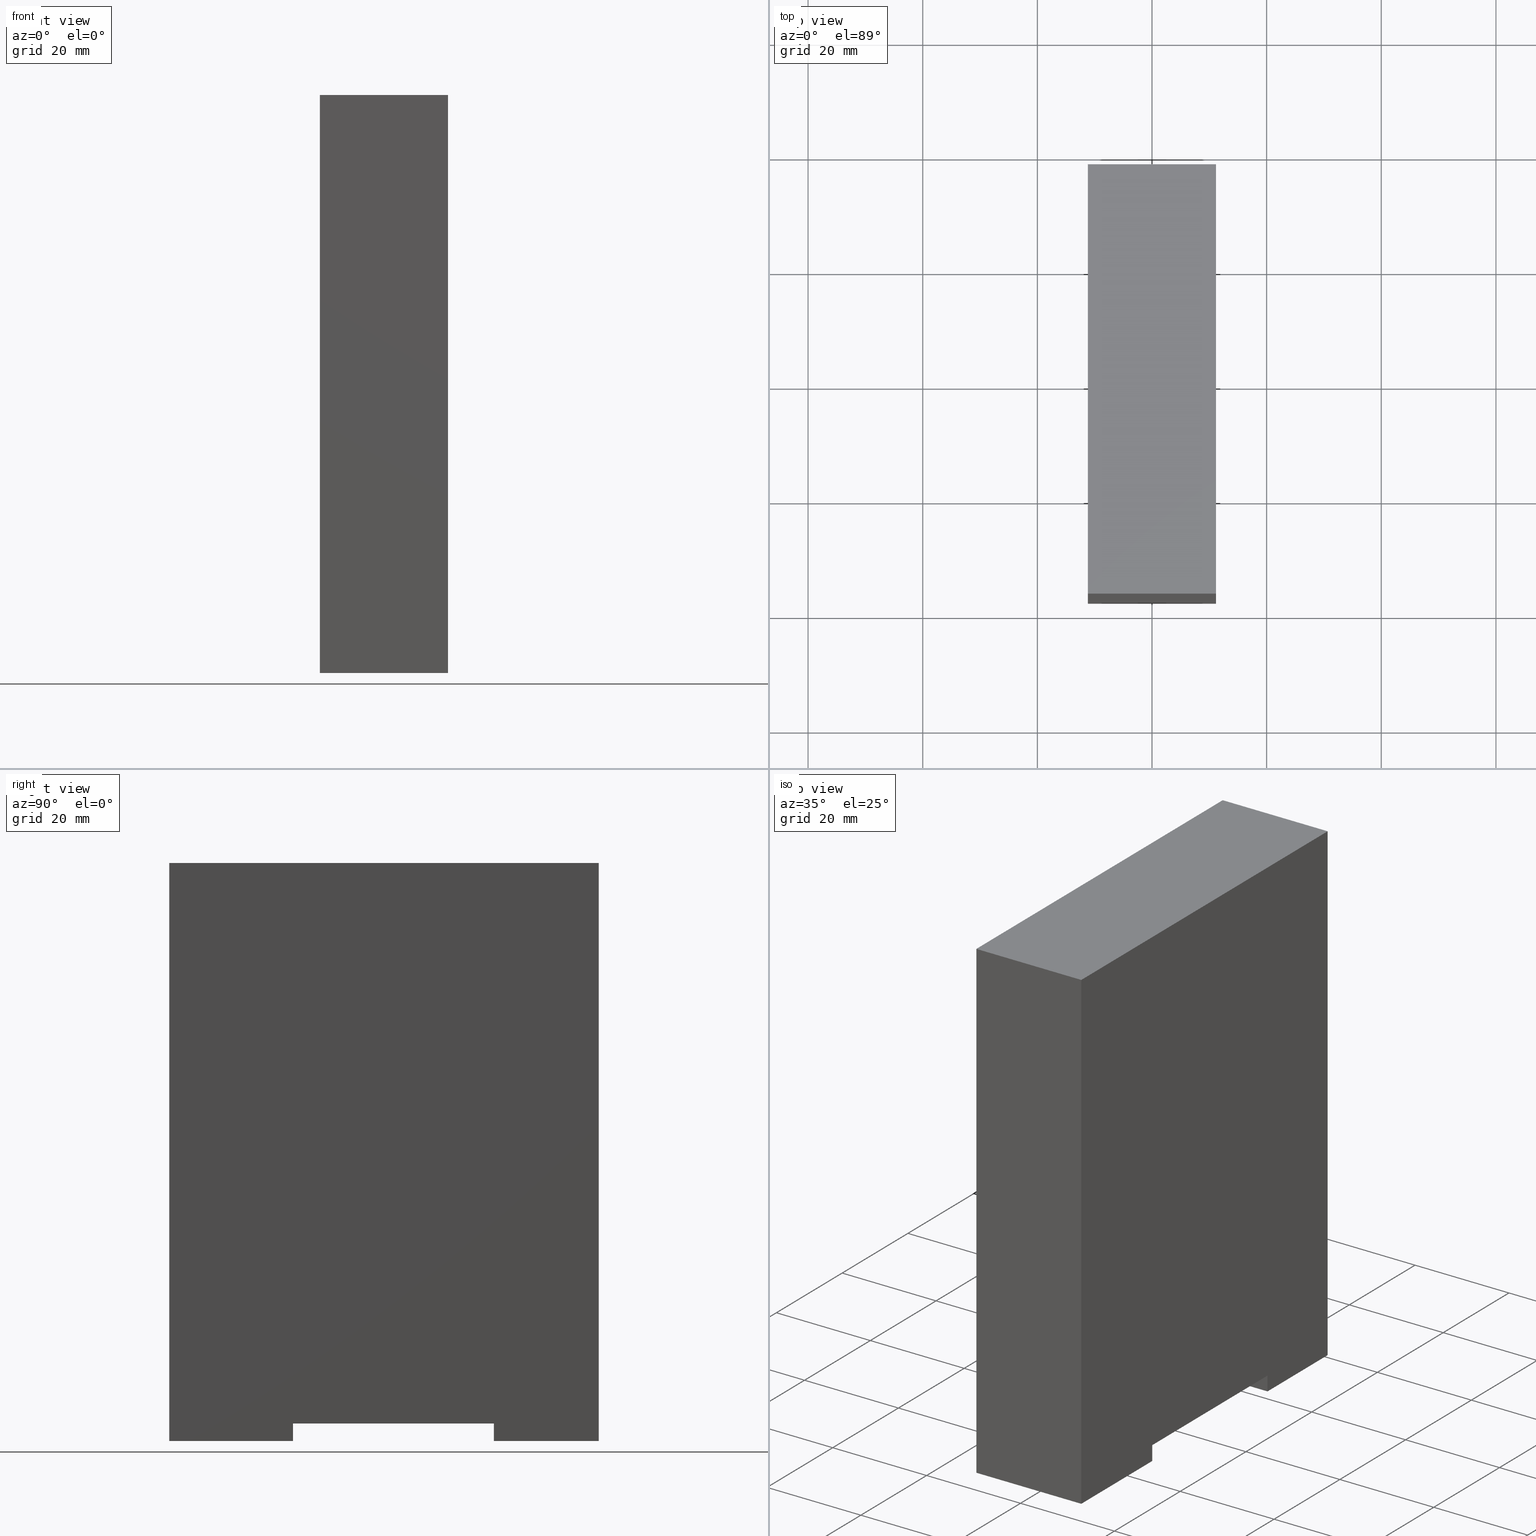
[diagram: canonical four-view strip — front | top / right | iso, engineering-drawing reading convention]
A machine part, canonical four-view strip (front | top / right | iso — engineering-drawing reading convention). The complete STEP part file that produces these views, byte-faithful:
ISO-10303-21;
HEADER;
FILE_DESCRIPTION((''),'2;1');
FILE_NAME('700-FSM4UZ12','2015-10-19T',('mguelmi'),('Rockwell Automation'),
'PRO/ENGINEER BY PARAMETRIC TECHNOLOGY CORPORATION, 2012480',
'PRO/ENGINEER BY PARAMETRIC TECHNOLOGY CORPORATION, 2012480','');
FILE_SCHEMA(('CONFIG_CONTROL_DESIGN'));
ENDSEC;
DATA;
#2=DIRECTION('',(0.E0,-1.E0,0.E0));
#3=VECTOR('',#2,2.95E0);
#4=CARTESIAN_POINT('',(-4.4E-1,1.475E0,0.E0));
#5=LINE('',#4,#3);
#6=DIRECTION('',(-1.E0,0.E0,0.E0));
#7=VECTOR('',#6,8.8E-1);
#8=CARTESIAN_POINT('',(4.4E-1,1.475E0,0.E0));
#9=LINE('',#8,#7);
#10=DIRECTION('',(0.E0,1.E0,0.E0));
#11=VECTOR('',#10,2.95E0);
#12=CARTESIAN_POINT('',(4.4E-1,-1.475E0,0.E0));
#13=LINE('',#12,#11);
#14=DIRECTION('',(1.E0,0.E0,0.E0));
#15=VECTOR('',#14,8.8E-1);
#16=CARTESIAN_POINT('',(-4.4E-1,-1.475E0,0.E0));
#17=LINE('',#16,#15);
#18=DIRECTION('',(0.E0,0.E0,1.E0));
#19=VECTOR('',#18,1.2E-1);
#20=CARTESIAN_POINT('',(-4.4E-1,7.55E-1,-3.97E0));
#21=LINE('',#20,#19);
#22=DIRECTION('',(0.E0,0.E0,-1.E0));
#23=VECTOR('',#22,3.97E0);
#24=CARTESIAN_POINT('',(-4.4E-1,1.475E0,0.E0));
#25=LINE('',#24,#23);
#26=DIRECTION('',(0.E0,0.E0,1.E0));
#27=VECTOR('',#26,1.2E-1);
#28=CARTESIAN_POINT('',(-4.4E-1,-6.25E-1,-3.97E0));
#29=LINE('',#28,#27);
#30=DIRECTION('',(0.E0,-1.E0,0.E0));
#31=VECTOR('',#30,1.38E0);
#32=CARTESIAN_POINT('',(-4.4E-1,7.55E-1,-3.85E0));
#33=LINE('',#32,#31);
#34=DIRECTION('',(-1.E0,0.E0,0.E0));
#35=VECTOR('',#34,8.8E-1);
#36=CARTESIAN_POINT('',(4.4E-1,7.55E-1,-3.85E0));
#37=LINE('',#36,#35);
#38=DIRECTION('',(-1.E0,0.E0,0.E0));
#39=VECTOR('',#38,8.8E-1);
#40=CARTESIAN_POINT('',(4.4E-1,-6.25E-1,-3.85E0));
#41=LINE('',#40,#39);
#42=DIRECTION('',(0.E0,-1.E0,0.E0));
#43=VECTOR('',#42,7.2E-1);
#44=CARTESIAN_POINT('',(-4.4E-1,1.475E0,-3.97E0));
#45=LINE('',#44,#43);
#46=DIRECTION('',(1.E0,0.E0,0.E0));
#47=VECTOR('',#46,8.8E-1);
#48=CARTESIAN_POINT('',(-4.4E-1,7.55E-1,-3.97E0));
#49=LINE('',#48,#47);
#50=DIRECTION('',(0.E0,1.E0,0.E0));
#51=VECTOR('',#50,7.2E-1);
#52=CARTESIAN_POINT('',(4.4E-1,7.55E-1,-3.97E0));
#53=LINE('',#52,#51);
#54=DIRECTION('',(-1.E0,0.E0,0.E0));
#55=VECTOR('',#54,8.8E-1);
#56=CARTESIAN_POINT('',(4.4E-1,1.475E0,-3.97E0));
#57=LINE('',#56,#55);
#58=DIRECTION('',(0.E0,-1.E0,0.E0));
#59=VECTOR('',#58,8.5E-1);
#60=CARTESIAN_POINT('',(-4.4E-1,-6.25E-1,-3.97E0));
#61=LINE('',#60,#59);
#62=DIRECTION('',(1.E0,0.E0,0.E0));
#63=VECTOR('',#62,8.8E-1);
#64=CARTESIAN_POINT('',(-4.4E-1,-1.475E0,-3.97E0));
#65=LINE('',#64,#63);
#66=DIRECTION('',(0.E0,1.E0,0.E0));
#67=VECTOR('',#66,8.5E-1);
#68=CARTESIAN_POINT('',(4.4E-1,-1.475E0,-3.97E0));
#69=LINE('',#68,#67);
#70=DIRECTION('',(1.E0,0.E0,0.E0));
#71=VECTOR('',#70,8.8E-1);
#72=CARTESIAN_POINT('',(-4.4E-1,-6.25E-1,-3.97E0));
#73=LINE('',#72,#71);
#74=DIRECTION('',(0.E0,0.E0,1.E0));
#75=VECTOR('',#74,1.2E-1);
#76=CARTESIAN_POINT('',(4.4E-1,7.55E-1,-3.97E0));
#77=LINE('',#76,#75);
#78=DIRECTION('',(0.E0,-1.E0,0.E0));
#79=VECTOR('',#78,1.38E0);
#80=CARTESIAN_POINT('',(4.4E-1,7.55E-1,-3.85E0));
#81=LINE('',#80,#79);
#82=DIRECTION('',(0.E0,0.E0,1.E0));
#83=VECTOR('',#82,1.2E-1);
#84=CARTESIAN_POINT('',(4.4E-1,-6.25E-1,-3.97E0));
#85=LINE('',#84,#83);
#86=DIRECTION('',(0.E0,0.E0,-1.E0));
#87=VECTOR('',#86,3.97E0);
#88=CARTESIAN_POINT('',(4.4E-1,-1.475E0,0.E0));
#89=LINE('',#88,#87);
#90=DIRECTION('',(0.E0,0.E0,-1.E0));
#91=VECTOR('',#90,3.97E0);
#92=CARTESIAN_POINT('',(-4.4E-1,-1.475E0,0.E0));
#93=LINE('',#92,#91);
#94=DIRECTION('',(0.E0,0.E0,-1.E0));
#95=VECTOR('',#94,3.97E0);
#96=CARTESIAN_POINT('',(4.4E-1,1.475E0,0.E0));
#97=LINE('',#96,#95);
#98=CARTESIAN_POINT('',(-4.4E-1,1.475E0,0.E0));
#99=CARTESIAN_POINT('',(-4.4E-1,-1.475E0,0.E0));
#100=VERTEX_POINT('',#98);
#101=VERTEX_POINT('',#99);
#102=CARTESIAN_POINT('',(4.4E-1,-1.475E0,0.E0));
#103=VERTEX_POINT('',#102);
#104=CARTESIAN_POINT('',(4.4E-1,1.475E0,0.E0));
#105=VERTEX_POINT('',#104);
#106=CARTESIAN_POINT('',(-4.4E-1,-1.475E0,-3.97E0));
#107=CARTESIAN_POINT('',(4.4E-1,-1.475E0,-3.97E0));
#108=VERTEX_POINT('',#106);
#109=VERTEX_POINT('',#107);
#110=CARTESIAN_POINT('',(4.4E-1,1.475E0,-3.97E0));
#111=CARTESIAN_POINT('',(-4.4E-1,1.475E0,-3.97E0));
#112=VERTEX_POINT('',#110);
#113=VERTEX_POINT('',#111);
#114=CARTESIAN_POINT('',(-4.4E-1,7.55E-1,-3.97E0));
#115=CARTESIAN_POINT('',(-4.4E-1,7.55E-1,-3.85E0));
#116=VERTEX_POINT('',#114);
#117=VERTEX_POINT('',#115);
#118=CARTESIAN_POINT('',(-4.4E-1,-6.25E-1,-3.85E0));
#119=VERTEX_POINT('',#118);
#120=CARTESIAN_POINT('',(-4.4E-1,-6.25E-1,-3.97E0));
#121=VERTEX_POINT('',#120);
#122=CARTESIAN_POINT('',(4.4E-1,7.55E-1,-3.85E0));
#123=VERTEX_POINT('',#122);
#124=CARTESIAN_POINT('',(4.4E-1,-6.25E-1,-3.85E0));
#125=VERTEX_POINT('',#124);
#126=CARTESIAN_POINT('',(4.4E-1,7.55E-1,-3.97E0));
#127=VERTEX_POINT('',#126);
#128=CARTESIAN_POINT('',(4.4E-1,-6.25E-1,-3.97E0));
#129=VERTEX_POINT('',#128);
#130=CARTESIAN_POINT('',(0.E0,0.E0,0.E0));
#131=DIRECTION('',(0.E0,0.E0,1.E0));
#132=DIRECTION('',(1.E0,0.E0,0.E0));
#133=AXIS2_PLACEMENT_3D('',#130,#131,#132);
#134=PLANE('',#133);
#136=ORIENTED_EDGE('',*,*,#135,.F.);
#138=ORIENTED_EDGE('',*,*,#137,.F.);
#140=ORIENTED_EDGE('',*,*,#139,.F.);
#142=ORIENTED_EDGE('',*,*,#141,.F.);
#143=EDGE_LOOP('',(#136,#138,#140,#142));
#144=FACE_OUTER_BOUND('',#143,.F.);
#145=ADVANCED_FACE('',(#144),#134,.T.);
#146=CARTESIAN_POINT('',(-4.4E-1,1.475E0,0.E0));
#147=DIRECTION('',(-1.E0,0.E0,0.E0));
#148=DIRECTION('',(0.E0,-1.E0,0.E0));
#149=AXIS2_PLACEMENT_3D('',#146,#147,#148);
#150=PLANE('',#149);
#152=ORIENTED_EDGE('',*,*,#151,.F.);
#154=ORIENTED_EDGE('',*,*,#153,.F.);
#156=ORIENTED_EDGE('',*,*,#155,.F.);
#157=ORIENTED_EDGE('',*,*,#135,.T.);
#159=ORIENTED_EDGE('',*,*,#158,.T.);
#161=ORIENTED_EDGE('',*,*,#160,.F.);
#163=ORIENTED_EDGE('',*,*,#162,.T.);
#165=ORIENTED_EDGE('',*,*,#164,.F.);
#166=EDGE_LOOP('',(#152,#154,#156,#157,#159,#161,#163,#165));
#167=FACE_OUTER_BOUND('',#166,.F.);
#168=ADVANCED_FACE('',(#167),#150,.T.);
#169=CARTESIAN_POINT('',(4.4E-1,7.55E-1,-3.97E0));
#170=DIRECTION('',(0.E0,1.E0,0.E0));
#171=DIRECTION('',(0.E0,0.E0,1.E0));
#172=AXIS2_PLACEMENT_3D('',#169,#170,#171);
#173=PLANE('',#172);
#174=ORIENTED_EDGE('',*,*,#151,.T.);
#176=ORIENTED_EDGE('',*,*,#175,.F.);
#178=ORIENTED_EDGE('',*,*,#177,.F.);
#180=ORIENTED_EDGE('',*,*,#179,.F.);
#181=EDGE_LOOP('',(#174,#176,#178,#180));
#182=FACE_OUTER_BOUND('',#181,.F.);
#183=ADVANCED_FACE('',(#182),#173,.F.);
#184=CARTESIAN_POINT('',(4.4E-1,7.55E-1,-3.85E0));
#185=DIRECTION('',(0.E0,0.E0,1.E0));
#186=DIRECTION('',(0.E0,-1.E0,0.E0));
#187=AXIS2_PLACEMENT_3D('',#184,#185,#186);
#188=PLANE('',#187);
#189=ORIENTED_EDGE('',*,*,#164,.T.);
#191=ORIENTED_EDGE('',*,*,#190,.F.);
#193=ORIENTED_EDGE('',*,*,#192,.F.);
#194=ORIENTED_EDGE('',*,*,#175,.T.);
#195=EDGE_LOOP('',(#189,#191,#193,#194));
#196=FACE_OUTER_BOUND('',#195,.F.);
#197=ADVANCED_FACE('',(#196),#188,.F.);
#198=CARTESIAN_POINT('',(4.4E-1,-6.25E-1,-3.85E0));
#199=DIRECTION('',(0.E0,-1.E0,0.E0));
#200=DIRECTION('',(0.E0,0.E0,-1.E0));
#201=AXIS2_PLACEMENT_3D('',#198,#199,#200);
#202=PLANE('',#201);
#203=ORIENTED_EDGE('',*,*,#162,.F.);
#205=ORIENTED_EDGE('',*,*,#204,.T.);
#207=ORIENTED_EDGE('',*,*,#206,.T.);
#208=ORIENTED_EDGE('',*,*,#190,.T.);
#209=EDGE_LOOP('',(#203,#205,#207,#208));
#210=FACE_OUTER_BOUND('',#209,.F.);
#211=ADVANCED_FACE('',(#210),#202,.F.);
#212=CARTESIAN_POINT('',(0.E0,0.E0,-3.97E0));
#213=DIRECTION('',(0.E0,0.E0,1.E0));
#214=DIRECTION('',(1.E0,0.E0,0.E0));
#215=AXIS2_PLACEMENT_3D('',#212,#213,#214);
#216=PLANE('',#215);
#217=ORIENTED_EDGE('',*,*,#153,.T.);
#218=ORIENTED_EDGE('',*,*,#179,.T.);
#220=ORIENTED_EDGE('',*,*,#219,.T.);
#222=ORIENTED_EDGE('',*,*,#221,.T.);
#223=EDGE_LOOP('',(#217,#218,#220,#222));
#224=FACE_OUTER_BOUND('',#223,.F.);
#225=ADVANCED_FACE('',(#224),#216,.F.);
#226=CARTESIAN_POINT('',(0.E0,0.E0,-3.97E0));
#227=DIRECTION('',(0.E0,0.E0,1.E0));
#228=DIRECTION('',(1.E0,0.E0,0.E0));
#229=AXIS2_PLACEMENT_3D('',#226,#227,#228);
#230=PLANE('',#229);
#231=ORIENTED_EDGE('',*,*,#160,.T.);
#233=ORIENTED_EDGE('',*,*,#232,.T.);
#235=ORIENTED_EDGE('',*,*,#234,.T.);
#236=ORIENTED_EDGE('',*,*,#204,.F.);
#237=EDGE_LOOP('',(#231,#233,#235,#236));
#238=FACE_OUTER_BOUND('',#237,.F.);
#239=ADVANCED_FACE('',(#238),#230,.F.);
#240=CARTESIAN_POINT('',(4.4E-1,-1.475E0,0.E0));
#241=DIRECTION('',(1.E0,0.E0,0.E0));
#242=DIRECTION('',(0.E0,1.E0,0.E0));
#243=AXIS2_PLACEMENT_3D('',#240,#241,#242);
#244=PLANE('',#243);
#245=ORIENTED_EDGE('',*,*,#177,.T.);
#246=ORIENTED_EDGE('',*,*,#192,.T.);
#247=ORIENTED_EDGE('',*,*,#206,.F.);
#248=ORIENTED_EDGE('',*,*,#234,.F.);
#250=ORIENTED_EDGE('',*,*,#249,.F.);
#251=ORIENTED_EDGE('',*,*,#139,.T.);
#253=ORIENTED_EDGE('',*,*,#252,.T.);
#254=ORIENTED_EDGE('',*,*,#219,.F.);
#255=EDGE_LOOP('',(#245,#246,#247,#248,#250,#251,#253,#254));
#256=FACE_OUTER_BOUND('',#255,.F.);
#257=ADVANCED_FACE('',(#256),#244,.T.);
#258=CARTESIAN_POINT('',(-4.4E-1,-1.475E0,0.E0));
#259=DIRECTION('',(0.E0,-1.E0,0.E0));
#260=DIRECTION('',(1.E0,0.E0,0.E0));
#261=AXIS2_PLACEMENT_3D('',#258,#259,#260);
#262=PLANE('',#261);
#263=ORIENTED_EDGE('',*,*,#141,.T.);
#264=ORIENTED_EDGE('',*,*,#249,.T.);
#265=ORIENTED_EDGE('',*,*,#232,.F.);
#266=ORIENTED_EDGE('',*,*,#158,.F.);
#267=EDGE_LOOP('',(#263,#264,#265,#266));
#268=FACE_OUTER_BOUND('',#267,.F.);
#269=ADVANCED_FACE('',(#268),#262,.T.);
#270=CARTESIAN_POINT('',(4.4E-1,1.475E0,0.E0));
#271=DIRECTION('',(0.E0,1.E0,0.E0));
#272=DIRECTION('',(-1.E0,0.E0,0.E0));
#273=AXIS2_PLACEMENT_3D('',#270,#271,#272);
#274=PLANE('',#273);
#275=ORIENTED_EDGE('',*,*,#137,.T.);
#276=ORIENTED_EDGE('',*,*,#155,.T.);
#277=ORIENTED_EDGE('',*,*,#221,.F.);
#278=ORIENTED_EDGE('',*,*,#252,.F.);
#279=EDGE_LOOP('',(#275,#276,#277,#278));
#280=FACE_OUTER_BOUND('',#279,.F.);
#281=ADVANCED_FACE('',(#280),#274,.T.);
#282=CLOSED_SHELL('',(#145,#168,#183,#197,#211,#225,#239,#257,#269,#281));
#283=MANIFOLD_SOLID_BREP('',#282);
#284=DIMENSIONAL_EXPONENTS(1.E0,0.E0,0.E0,0.E0,0.E0,0.E0,0.E0);
#286=LENGTH_MEASURE_WITH_UNIT(LENGTH_MEASURE(2.54E1),#285);
#287=(CONVERSION_BASED_UNIT('INCH',#286)LENGTH_UNIT()NAMED_UNIT(#284));
#288=DIMENSIONAL_EXPONENTS(0.E0,0.E0,0.E0,0.E0,0.E0,0.E0,0.E0);
#290=PLANE_ANGLE_MEASURE_WITH_UNIT(PLANE_ANGLE_MEASURE(1.745329251994E-2),#289);
#291=(CONVERSION_BASED_UNIT('DEGREE',#290)NAMED_UNIT(*)PLANE_ANGLE_UNIT());
#293=UNCERTAINTY_MEASURE_WITH_UNIT(LENGTH_MEASURE(5.023522769569E-4),#287,
'closure',
'Maximum model space distance between geometric entities at asserted connectivities');
#294=(GEOMETRIC_REPRESENTATION_CONTEXT(3)GLOBAL_UNCERTAINTY_ASSIGNED_CONTEXT((
#293))GLOBAL_UNIT_ASSIGNED_CONTEXT((#287,#291,#292))REPRESENTATION_CONTEXT
('ID1','3'));
#296=APPLICATION_CONTEXT(
'CONFIGURATION CONTROLLED 3D DESIGNS OF MECHANICAL PARTS AND ASSEMBLIES');
#297=APPLICATION_PROTOCOL_DEFINITION('international standard',
'config_control_design',1994,#296);
#298=DESIGN_CONTEXT('',#296,'design');
#299=MECHANICAL_CONTEXT('',#296,'mechanical');
#300=PRODUCT('700-FSM4UZ12','700-FSM4UZ12','NOT SPECIFIED',(#299));
#301=PRODUCT_DEFINITION_FORMATION_WITH_SPECIFIED_SOURCE('1','LAST_VERSION',#300,
.MADE.);
#305=PRODUCT_CATEGORY('part','');
#306=PRODUCT_RELATED_PRODUCT_CATEGORY('detail','',(#300));
#307=PRODUCT_CATEGORY_RELATIONSHIP('','',#305,#306);
#308=SECURITY_CLASSIFICATION_LEVEL('unclassified');
#309=SECURITY_CLASSIFICATION('','',#308);
#310=CC_DESIGN_SECURITY_CLASSIFICATION(#309,(#301));
#311=APPROVAL_STATUS('approved');
#312=APPROVAL(#311,'');
#313=CC_DESIGN_APPROVAL(#312,(#309,#301,#302));
#314=CALENDAR_DATE(115,19,10);
#315=COORDINATED_UNIVERSAL_TIME_OFFSET(5,0,.BEHIND.);
#316=LOCAL_TIME(9,8,3.E0,#315);
#317=DATE_AND_TIME(#314,#316);
#318=APPROVAL_DATE_TIME(#317,#312);
#319=DATE_TIME_ROLE('creation_date');
#320=CC_DESIGN_DATE_AND_TIME_ASSIGNMENT(#317,#319,(#302));
#321=DATE_TIME_ROLE('classification_date');
#322=CC_DESIGN_DATE_AND_TIME_ASSIGNMENT(#317,#321,(#309));
#323=PERSON('UNSPECIFIED','UNSPECIFIED',$,$,$,$);
#324=ORGANIZATION('UNSPECIFIED','UNSPECIFIED','UNSPECIFIED');
#325=PERSON_AND_ORGANIZATION(#323,#324);
#326=APPROVAL_ROLE('approver');
#327=APPROVAL_PERSON_ORGANIZATION(#325,#312,#326);
#328=PERSON_AND_ORGANIZATION_ROLE('creator');
#329=CC_DESIGN_PERSON_AND_ORGANIZATION_ASSIGNMENT(#325,#328,(#301,#302));
#330=PERSON_AND_ORGANIZATION_ROLE('design_supplier');
#331=CC_DESIGN_PERSON_AND_ORGANIZATION_ASSIGNMENT(#325,#330,(#301));
#332=PERSON_AND_ORGANIZATION_ROLE('classification_officer');
#333=CC_DESIGN_PERSON_AND_ORGANIZATION_ASSIGNMENT(#325,#332,(#309));
#334=PERSON_AND_ORGANIZATION_ROLE('design_owner');
#335=CC_DESIGN_PERSON_AND_ORGANIZATION_ASSIGNMENT(#325,#334,(#300));
#135=EDGE_CURVE('',#100,#101,#5,.T.);
#137=EDGE_CURVE('',#105,#100,#9,.T.);
#139=EDGE_CURVE('',#103,#105,#13,.T.);
#141=EDGE_CURVE('',#101,#103,#17,.T.);
#151=EDGE_CURVE('',#116,#117,#21,.T.);
#153=EDGE_CURVE('',#113,#116,#45,.T.);
#155=EDGE_CURVE('',#100,#113,#25,.T.);
#158=EDGE_CURVE('',#101,#108,#93,.T.);
#160=EDGE_CURVE('',#121,#108,#61,.T.);
#162=EDGE_CURVE('',#121,#119,#29,.T.);
#164=EDGE_CURVE('',#117,#119,#33,.T.);
#175=EDGE_CURVE('',#123,#117,#37,.T.);
#177=EDGE_CURVE('',#127,#123,#77,.T.);
#179=EDGE_CURVE('',#116,#127,#49,.T.);
#190=EDGE_CURVE('',#125,#119,#41,.T.);
#192=EDGE_CURVE('',#123,#125,#81,.T.);
#204=EDGE_CURVE('',#121,#129,#73,.T.);
#206=EDGE_CURVE('',#129,#125,#85,.T.);
#219=EDGE_CURVE('',#127,#112,#53,.T.);
#221=EDGE_CURVE('',#112,#113,#57,.T.);
#232=EDGE_CURVE('',#108,#109,#65,.T.);
#234=EDGE_CURVE('',#109,#129,#69,.T.);
#249=EDGE_CURVE('',#103,#109,#89,.T.);
#252=EDGE_CURVE('',#105,#112,#97,.T.);
#285=(LENGTH_UNIT()NAMED_UNIT(*)SI_UNIT(.MILLI.,.METRE.));
#289=(NAMED_UNIT(*)PLANE_ANGLE_UNIT()SI_UNIT($,.RADIAN.));
#292=(NAMED_UNIT(*)SI_UNIT($,.STERADIAN.)SOLID_ANGLE_UNIT());
#295=ADVANCED_BREP_SHAPE_REPRESENTATION('',(#283),#294);
#302=PRODUCT_DEFINITION('design','',#301,#298);
#303=PRODUCT_DEFINITION_SHAPE('','SHAPE FOR 700-FSM4UZ12.',#302);
#304=SHAPE_DEFINITION_REPRESENTATION(#303,#295);
ENDSEC;
END-ISO-10303-21;
